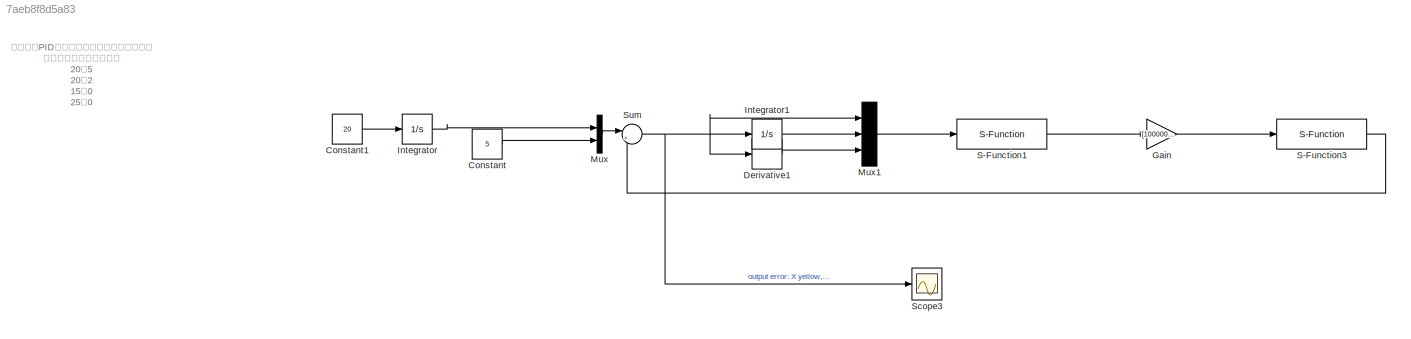
MODEL slx_7aeb8f8d5a83
KIND model
CONFIG AbsTol = auto
CONFIG EnableMultiTasking = off
CONFIG FixedStep = auto
CONFIG MaxStep = auto
CONFIG MinStep = auto
CONFIG RelTol = 1e-3
CONFIG SampleTimeConstraint = Unconstrained
CONFIG SolverName = VariableStepAuto
CONFIG StartTime = 0.0
CONFIG StopTime = 20
BLOCK [Constant] Constant
  SampleTime = -1
  Value = 5
BLOCK [Constant] Constant1
  SampleTime = -1
  Value = 20
BLOCK [Derivative] Derivative1
BLOCK [Gain] Gain
  Gain = [100000 0.01]
BLOCK [Integrator] Integrator
BLOCK [Integrator] Integrator1
BLOCK [Mux] Mux
  DisplayOption = bar
  Inputs = 2
BLOCK [Mux] Mux1
  DisplayOption = bar
  Inputs = 3
BLOCK [S-Function] S-Function1
  EnableBusSupport = off
  FunctionName = nnpid_self
  SFcnIsStateOwnerBlock = off
  SFunctionDeploymentMode = off
BLOCK [S-Function] S-Function3
  EnableBusSupport = off
  FunctionName = model
  SFcnIsStateOwnerBlock = off
  SFunctionDeploymentMode = off
BLOCK [Scope] Scope3
  Floating = off
  NumInputPorts = 1
  ScopeSpecificationString = Simulink.scopes.TimeScopeBlockCfg('CurrentConfiguration', extmgr.ConfigurationSet(extmgr.Configuration('Core','General UI',true),extmgr.Configuration('Core','Source UI',true),extmgr.Configuration('Sources','WiredSimulink',true,'DataLoggingVariableName','ScopeData2'),extmgr.Configuration('Visuals','Time Domain',true,'SerializedDisplays',{struct('MinYLimReal','-5','MaxYLimReal','5','YLabelReal','','...<+1557ch>
BLOCK [Sum] Sum
  Inputs = |+-
ANNOTATION (root): 神经网络PID控制器对于这个问题很不稳定， 您只能进行如下参数组合 20，5 20，2 15，0 25，0 20，0 及其它合理值 意思是不能同时让系统加减速然后变道
LINE Constant1:1 -> Integrator:1
LINE Constant:1 -> Mux:2
LINE Derivative1:1 -> Mux1:3
LINE Gain:1 -> S-Function3:1
LINE Integrator1:1 -> Mux1:2
LINE Integrator:1 -> Mux:1
LINE Mux1:1 -> S-Function1:1
LINE Mux:1 -> Sum:1
LINE S-Function1:1 -> Gain:1
LINE S-Function3:1 -> Sum:2
NET Sum:1 -> Derivative1:1, Integrator1:1, Mux1:1, Scope3:1
note: NET lines group one-source signal fan-out (src -> all destinations, sorted); 1:1 wires keep LINE
